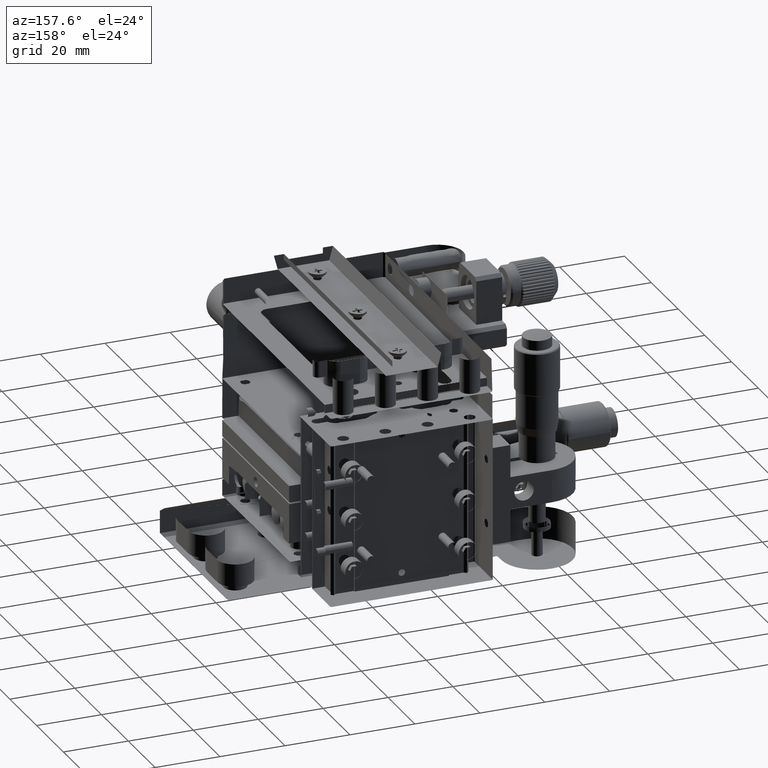
[diagram: clean part render]
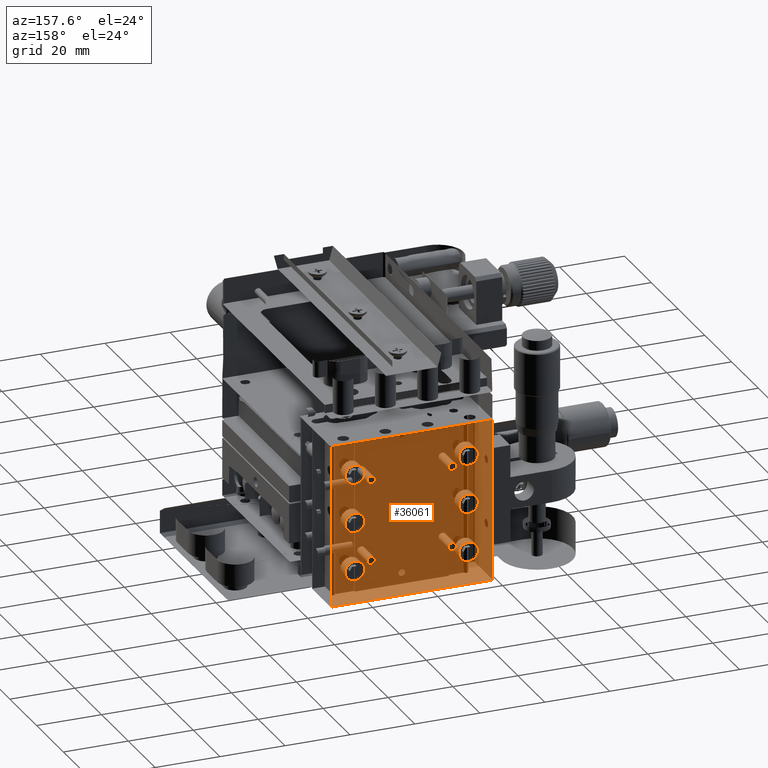
[diagram: same view with one face highlighted and labeled with its STEP entity id]
A machine part, auxiliary view. The second image highlights one B-rep face of the part: STEP entity #36061.
In plain terms, the highlighted face is a freeform B-spline surface patch.
Its self-contained STEP definition (entity closure, byte-faithful):
#28 = CARTESIAN_POINT ( 'NONE',  ( 9.293628209608510105, 58.40884961642790074, 16.00000000000000000 ) ) ;
#59 = CARTESIAN_POINT ( 'NONE',  ( -29.25637179039149771, 58.40884961642790074, 3.500000000000000000 ) ) ;
#657 =( BOUNDED_CURVE ( )  B_SPLINE_CURVE ( 3, ( #30546, #14973, #4615, #34138 ),
 .UNSPECIFIED., .F., .F. ) 
 B_SPLINE_CURVE_WITH_KNOTS ( ( 4, 4 ),
 ( 0.000000000000000000, 1.000000000000000000 ),
 .UNSPECIFIED. ) 
 CURVE ( )  GEOMETRIC_REPRESENTATION_ITEM ( )  RATIONAL_B_SPLINE_CURVE ( ( 1.000000000000000000, 0.3333333333333329818, 0.3333333333333329818, 1.000000000000000000 ) ) 
 REPRESENTATION_ITEM ( '' )  );
#714 = CARTESIAN_POINT ( 'NONE',  ( -29.25637179039149771, 58.40884961642790074, 53.50000000000000000 ) ) ;
#951 = CARTESIAN_POINT ( 'NONE',  ( -15.70637179039149878, 58.40884961642790074, 41.00000000000000000 ) ) ;
#1192 = CARTESIAN_POINT ( 'NONE',  ( -18.95637179039149700, 58.40884961642790074, 13.50000000000000000 ) ) ;
#1448 = CARTESIAN_POINT ( 'NONE',  ( 9.293628209608499446, 58.40884961642790074, 41.00000000000000000 ) ) ;
#1648 = VERTEX_POINT ( 'NONE', #58033 ) ;
#1772 =( BOUNDED_CURVE ( )  B_SPLINE_CURVE ( 3, ( #61805, #56945, #57267, #62754 ),
 .UNSPECIFIED., .F., .T. ) 
 B_SPLINE_CURVE_WITH_KNOTS ( ( 4, 4 ),
 ( 0.000000000000000000, 1.000000000000000000 ),
 .UNSPECIFIED. ) 
 CURVE ( )  GEOMETRIC_REPRESENTATION_ITEM ( )  RATIONAL_B_SPLINE_CURVE ( ( 1.000000000000000000, 0.3333333333333329818, 0.3333333333333329818, 1.000000000000000000 ) ) 
 REPRESENTATION_ITEM ( '' )  );
#1930 = EDGE_CURVE ( 'NONE', #61177, #22872, #1772, .T. ) ;
#2038 = CARTESIAN_POINT ( 'NONE',  ( 9.293628209608495894, 58.40884961642781548, 43.50000000000004263 ) ) ;
#2104 = VERTEX_POINT ( 'NONE', #25995 ) ;
#2110 = B_SPLINE_CURVE_WITH_KNOTS ( 'NONE', 1,
 ( #59, #44898 ),
 .UNSPECIFIED., .F., .F.,
 ( 2, 2 ),
 ( 0.000000000000000000, 1.000000000000000000 ),
 .UNSPECIFIED. ) ;
#2277 = EDGE_LOOP ( 'NONE', ( #36693, #24754 ) ) ;
#2854 = ORIENTED_EDGE ( 'NONE', *, *, #54519, .F. ) ;
#3207 = B_SPLINE_CURVE_WITH_KNOTS ( 'NONE', 1,
 ( #714, #56302 ),
 .UNSPECIFIED., .F., .F.,
 ( 2, 2 ),
 ( 0.000000000000000000, 0.006048594069572639335 ),
 .UNSPECIFIED. ) ;
#3452 = CARTESIAN_POINT ( 'NONE',  ( 10.04362820960849412, 58.40884961642796469, 7.500000000000007994 ) ) ;
#3505 = EDGE_CURVE ( 'NONE', #48611, #64004, #19584, .T. ) ;
#3683 = EDGE_CURVE ( 'NONE', #2104, #19112, #16367, .T. ) ;
#3780 = CARTESIAN_POINT ( 'NONE',  ( 16.04362820960850300, 58.40884961642790074, 13.50000000000000000 ) ) ;
#3881 = VERTEX_POINT ( 'NONE', #63498 ) ;
#3966 = VERTEX_POINT ( 'NONE', #30630 ) ;
#4127 = CARTESIAN_POINT ( 'NONE',  ( -28.95636152454070000, 58.40884961642790074, 53.50000000000000000 ) ) ;
#4162 = FACE_BOUND ( 'NONE', #28538, .T. ) ;
#4254 = CARTESIAN_POINT ( 'NONE',  ( -24.95637179039150055, 58.40884961642790074, 13.50000000000000000 ) ) ;
#4522 = ORIENTED_EDGE ( 'NONE', *, *, #51263, .F. ) ;
#4615 = CARTESIAN_POINT ( 'NONE',  ( 10.04362820960849412, 58.40884961642796469, 49.50000000000004974 ) ) ;
#5306 = ORIENTED_EDGE ( 'NONE', *, *, #11118, .F. ) ;
#5827 =( BOUNDED_CURVE ( )  B_SPLINE_CURVE ( 3, ( #12889, #3452, #22321, #3780 ),
 .UNSPECIFIED., .F., .F. ) 
 B_SPLINE_CURVE_WITH_KNOTS ( ( 4, 4 ),
 ( 0.000000000000000000, 1.000000000000000000 ),
 .UNSPECIFIED. ) 
 CURVE ( )  GEOMETRIC_REPRESENTATION_ITEM ( )  RATIONAL_B_SPLINE_CURVE ( ( 1.000000000000000000, 0.3333333333333329818, 0.3333333333333329818, 1.000000000000000000 ) ) 
 REPRESENTATION_ITEM ( '' )  );
#6533 = CARTESIAN_POINT ( 'NONE',  ( 6.793628209608510993, 58.40884961642790074, 16.00000000000000000 ) ) ;
#6622 = CARTESIAN_POINT ( 'NONE',  ( -18.20637179039149700, 58.40884961642790074, 16.00000000000000000 ) ) ;
#7567 = CARTESIAN_POINT ( 'NONE',  ( 6.793628209608510993, 58.40884961642790074, 41.00000000000000000 ) ) ;
#7601 = EDGE_CURVE ( 'NONE', #23865, #14526, #11450, .T. ) ;
#7616 = CARTESIAN_POINT ( 'NONE',  ( -29.25637179039149771, 58.40884961642790074, 3.500000000000000000 ) ) ;
#8688 = CARTESIAN_POINT ( 'NONE',  ( 10.04362820960849945, 58.40884961642790074, 13.50000000000000000 ) ) ;
#9690 = CARTESIAN_POINT ( 'NONE',  ( -29.25637179039149771, 58.40884961642790074, 53.50000000000000000 ) ) ;
#10737 = VERTEX_POINT ( 'NONE', #24150 ) ;
#10888 = EDGE_CURVE ( 'NONE', #22872, #61177, #48960, .T. ) ;
#11118 = EDGE_CURVE ( 'NONE', #57660, #36487, #26559, .T. ) ;
#11188 = EDGE_CURVE ( 'NONE', #31580, #13422, #33157, .T. ) ;
#11361 = CARTESIAN_POINT ( 'NONE',  ( -15.70637179039150588, 58.40884961642796469, 13.50000000000001776 ) ) ;
#11450 =( BOUNDED_CURVE ( )  B_SPLINE_CURVE ( 3, ( #42481, #37614, #47715, #62642 ),
 .UNSPECIFIED., .F., .T. ) 
 B_SPLINE_CURVE_WITH_KNOTS ( ( 4, 4 ),
 ( 0.000000000000000000, 1.000000000000000000 ),
 .UNSPECIFIED. ) 
 CURVE ( )  GEOMETRIC_REPRESENTATION_ITEM ( )  RATIONAL_B_SPLINE_CURVE ( ( 1.000000000000000000, 0.3333333333333329818, 0.3333333333333329818, 1.000000000000000000 ) ) 
 REPRESENTATION_ITEM ( '' )  );
#11482 = CARTESIAN_POINT ( 'NONE',  ( -15.70637179039149878, 58.40884961642790074, 16.00000000000000000 ) ) ;
#11855 = CARTESIAN_POINT ( 'NONE',  ( 16.04362820960848879, 58.40884961642796469, 22.50000000000002487 ) ) ;
#12200 = CARTESIAN_POINT ( 'NONE',  ( 16.04362820960850300, 58.40884961642790074, 43.50000000000000000 ) ) ;
#12285 = VERTEX_POINT ( 'NONE', #63653 ) ;
#12751 = CARTESIAN_POINT ( 'NONE',  ( 9.293628209608499446, 58.40884961642790074, 41.00000000000000000 ) ) ;
#12889 = CARTESIAN_POINT ( 'NONE',  ( 10.04362820960849945, 58.40884961642790074, 13.50000000000000000 ) ) ;
#13229 = CARTESIAN_POINT ( 'NONE',  ( 20.34362820960850371, 58.40884961642790074, 53.50000000000000000 ) ) ;
#13422 = VERTEX_POINT ( 'NONE', #58663 ) ;
#13624 = EDGE_LOOP ( 'NONE', ( #32468, #5306 ) ) ;
#14179 = EDGE_CURVE ( 'NONE', #30797, #3966, #32925, .T. ) ;
#14526 = VERTEX_POINT ( 'NONE', #4254 ) ;
#14529 = FACE_BOUND ( 'NONE', #19437, .T. ) ;
#14580 = VERTEX_POINT ( 'NONE', #37314 ) ;
#14917 = ORIENTED_EDGE ( 'NONE', *, *, #64064, .F. ) ;
#14973 = CARTESIAN_POINT ( 'NONE',  ( 16.04362820960848879, 58.40884961642796469, 49.50000000000004974 ) ) ;
#15324 = CARTESIAN_POINT ( 'NONE',  ( 10.04362820960849945, 58.40884961642790074, 28.50000000000000000 ) ) ;
#15517 = CARTESIAN_POINT ( 'NONE',  ( -18.95637179039149700, 58.40884961642790074, 43.50000000000000000 ) ) ;
#15776 = ORIENTED_EDGE ( 'NONE', *, *, #61667, .F. ) ;
#16012 = CARTESIAN_POINT ( 'NONE',  ( -15.70637179039150588, 58.40884961642796469, 18.50000000000000355 ) ) ;
#16032 = CARTESIAN_POINT ( 'NONE',  ( -24.95637179039150766, 58.40884961642796469, 34.50000000000003553 ) ) ;
#16246 = CARTESIAN_POINT ( 'NONE',  ( 9.293628209608510105, 58.40884961642790074, 16.00000000000000000 ) ) ;
#16351 =( BOUNDED_CURVE ( )  B_SPLINE_CURVE ( 3, ( #11482, #16012, #51140, #6622 ),
 .UNSPECIFIED., .F., .F. ) 
 B_SPLINE_CURVE_WITH_KNOTS ( ( 4, 4 ),
 ( 0.000000000000000000, 1.000000000000000000 ),
 .UNSPECIFIED. ) 
 CURVE ( )  GEOMETRIC_REPRESENTATION_ITEM ( )  RATIONAL_B_SPLINE_CURVE ( ( 1.000000000000000000, 0.3333333333333329818, 0.3333333333333329818, 1.000000000000000000 ) ) 
 REPRESENTATION_ITEM ( '' )  );
#16362 = CARTESIAN_POINT ( 'NONE',  ( -18.95637179039149700, 58.40884961642790074, 28.50000000000000000 ) ) ;
#16367 =( BOUNDED_CURVE ( )  B_SPLINE_CURVE ( 3, ( #27138, #17707, #37516, #12200 ),
 .UNSPECIFIED., .F., .F. ) 
 B_SPLINE_CURVE_WITH_KNOTS ( ( 4, 4 ),
 ( 0.000000000000000000, 1.000000000000000000 ),
 .UNSPECIFIED. ) 
 CURVE ( )  GEOMETRIC_REPRESENTATION_ITEM ( )  RATIONAL_B_SPLINE_CURVE ( ( 1.000000000000000000, 0.3333333333333329818, 0.3333333333333329818, 1.000000000000000000 ) ) 
 REPRESENTATION_ITEM ( '' )  );
#16762 = CARTESIAN_POINT ( 'NONE',  ( -24.95637179039150055, 58.40884961642790074, 28.50000000000000000 ) ) ;
#17707 = CARTESIAN_POINT ( 'NONE',  ( 10.04362820960849412, 58.40884961642796469, 37.50000000000004263 ) ) ;
#18117 = CARTESIAN_POINT ( 'NONE',  ( 20.34362820960850371, 58.40884961642790074, 53.50000000000000000 ) ) ;
#18720 = CARTESIAN_POINT ( 'NONE',  ( -15.70637179039149878, 58.40884961642790074, 41.00000000000000000 ) ) ;
#18850 = CARTESIAN_POINT ( 'NONE',  ( 20.34362820960850371, 58.40884961642790074, 3.500000000000000000 ) ) ;
#19010 = EDGE_CURVE ( 'NONE', #12285, #34532, #34729, .T. ) ;
#19112 = VERTEX_POINT ( 'NONE', #29473 ) ;
#19437 = EDGE_LOOP ( 'NONE', ( #46174, #20089 ) ) ;
#19584 =( BOUNDED_CURVE ( )  B_SPLINE_CURVE ( 3, ( #62927, #33327, #48653, #8688 ),
 .UNSPECIFIED., .F., .F. ) 
 B_SPLINE_CURVE_WITH_KNOTS ( ( 4, 4 ),
 ( 0.000000000000000000, 1.000000000000000000 ),
 .UNSPECIFIED. ) 
 CURVE ( )  GEOMETRIC_REPRESENTATION_ITEM ( )  RATIONAL_B_SPLINE_CURVE ( ( 1.000000000000000000, 0.3333333333333329818, 0.3333333333333329818, 1.000000000000000000 ) ) 
 REPRESENTATION_ITEM ( '' )  );
#20089 = ORIENTED_EDGE ( 'NONE', *, *, #7601, .F. ) ;
#20161 = CARTESIAN_POINT ( 'NONE',  ( 9.293628209608511881, 58.40884961642781548, 13.50000000000001776 ) ) ;
#20312 = CARTESIAN_POINT ( 'NONE',  ( -18.95637179039149700, 58.40884961642790074, 43.50000000000000000 ) ) ;
#20481 = ORIENTED_EDGE ( 'NONE', *, *, #46672, .F. ) ;
#20655 = VERTEX_POINT ( 'NONE', #16762 ) ;
#20878 = VERTEX_POINT ( 'NONE', #20914 ) ;
#20914 = CARTESIAN_POINT ( 'NONE',  ( 16.04362820960850300, 58.40884961642790074, 28.50000000000000000 ) ) ;
#21953 =( BOUNDED_CURVE ( )  B_SPLINE_CURVE ( 3, ( #47766, #57842, #26972, #46817 ),
 .UNSPECIFIED., .F., .F. ) 
 B_SPLINE_CURVE_WITH_KNOTS ( ( 4, 4 ),
 ( 0.000000000000000000, 1.000000000000000000 ),
 .UNSPECIFIED. ) 
 CURVE ( )  GEOMETRIC_REPRESENTATION_ITEM ( )  RATIONAL_B_SPLINE_CURVE ( ( 1.000000000000000000, 0.3333333333333329818, 0.3333333333333329818, 1.000000000000000000 ) ) 
 REPRESENTATION_ITEM ( '' )  );
#22070 =( BOUNDED_CURVE ( )  B_SPLINE_CURVE ( 3, ( #30221, #26014, #20161, #34783 ),
 .UNSPECIFIED., .F., .F. ) 
 B_SPLINE_CURVE_WITH_KNOTS ( ( 4, 4 ),
 ( 0.000000000000000000, 1.000000000000000000 ),
 .UNSPECIFIED. ) 
 CURVE ( )  GEOMETRIC_REPRESENTATION_ITEM ( )  RATIONAL_B_SPLINE_CURVE ( ( 1.000000000000000000, 0.3333333333333329818, 0.3333333333333329818, 1.000000000000000000 ) ) 
 REPRESENTATION_ITEM ( '' )  );
#22172 = EDGE_LOOP ( 'NONE', ( #49211, #55780 ) ) ;
#22202 = EDGE_CURVE ( 'NONE', #20878, #14580, #31124, .T. ) ;
#22321 = CARTESIAN_POINT ( 'NONE',  ( 16.04362820960848879, 58.40884961642796469, 7.500000000000007994 ) ) ;
#22872 = VERTEX_POINT ( 'NONE', #1448 ) ;
#23203 = ORIENTED_EDGE ( 'NONE', *, *, #1930, .F. ) ;
#23627 = FACE_BOUND ( 'NONE', #35110, .T. ) ;
#23865 = VERTEX_POINT ( 'NONE', #1192 ) ;
#24150 = CARTESIAN_POINT ( 'NONE',  ( 20.04363847545930000, 58.40884961642790074, 53.50000000000000000 ) ) ;
#24436 = CARTESIAN_POINT ( 'NONE',  ( 10.04362820960849945, 58.40884961642790074, 13.50000000000000000 ) ) ;
#24444 = CARTESIAN_POINT ( 'NONE',  ( -24.95637179039150766, 58.40884961642796469, 7.500000000000007994 ) ) ;
#24552 = CARTESIAN_POINT ( 'NONE',  ( -18.20637179039150055, 58.40884961642796469, 43.50000000000004263 ) ) ;
#24754 = ORIENTED_EDGE ( 'NONE', *, *, #49118, .F. ) ;
#25567 = EDGE_LOOP ( 'NONE', ( #55338, #56591 ) ) ;
#25995 = CARTESIAN_POINT ( 'NONE',  ( 10.04362820960849945, 58.40884961642790074, 43.50000000000000000 ) ) ;
#26014 = CARTESIAN_POINT ( 'NONE',  ( 6.793628209608517210, 58.40884961642781548, 13.50000000000001776 ) ) ;
#26153 = EDGE_CURVE ( 'NONE', #3881, #20655, #48251, .T. ) ;
#26559 =( BOUNDED_CURVE ( )  B_SPLINE_CURVE ( 3, ( #16246, #61100, #50723, #6533 ),
 .UNSPECIFIED., .F., .T. ) 
 B_SPLINE_CURVE_WITH_KNOTS ( ( 4, 4 ),
 ( 0.000000000000000000, 1.000000000000000000 ),
 .UNSPECIFIED. ) 
 CURVE ( )  GEOMETRIC_REPRESENTATION_ITEM ( )  RATIONAL_B_SPLINE_CURVE ( ( 1.000000000000000000, 0.3333333333333329818, 0.3333333333333329818, 1.000000000000000000 ) ) 
 REPRESENTATION_ITEM ( '' )  );
#26952 = CARTESIAN_POINT ( 'NONE',  ( 6.793628209608510993, 58.40884961642790074, 41.00000000000000000 ) ) ;
#26972 = CARTESIAN_POINT ( 'NONE',  ( -18.95637179039149700, 58.40884961642796469, 37.50000000000004263 ) ) ;
#27024 = CARTESIAN_POINT ( 'NONE',  ( 20.04363847545930000, 58.40884961642790074, 53.50000000000000000 ) ) ;
#27138 = CARTESIAN_POINT ( 'NONE',  ( 10.04362820960849945, 58.40884961642790074, 43.50000000000000000 ) ) ;
#27902 =( BOUNDED_CURVE ( )  B_SPLINE_CURVE ( 3, ( #52218, #47337, #29715, #44656 ),
 .UNSPECIFIED., .F., .F. ) 
 B_SPLINE_CURVE_WITH_KNOTS ( ( 4, 4 ),
 ( 0.000000000000000000, 1.000000000000000000 ),
 .UNSPECIFIED. ) 
 CURVE ( )  GEOMETRIC_REPRESENTATION_ITEM ( )  RATIONAL_B_SPLINE_CURVE ( ( 1.000000000000000000, 0.3333333333333329818, 0.3333333333333329818, 1.000000000000000000 ) ) 
 REPRESENTATION_ITEM ( '' )  );
#28128 = EDGE_CURVE ( 'NONE', #10737, #45880, #54082, .T. ) ;
#28257 = EDGE_CURVE ( 'NONE', #13422, #31580, #52157, .T. ) ;
#28288 = CARTESIAN_POINT ( 'NONE',  ( 16.04362820960850300, 58.40884961642790074, 28.50000000000000000 ) ) ;
#28367 = CARTESIAN_POINT ( 'NONE',  ( -18.95637179039149700, 58.40884961642796469, 7.500000000000007994 ) ) ;
#28538 = EDGE_LOOP ( 'NONE', ( #2854, #33057 ) ) ;
#29187 = ORIENTED_EDGE ( 'NONE', *, *, #10888, .F. ) ;
#29473 = CARTESIAN_POINT ( 'NONE',  ( 16.04362820960850300, 58.40884961642790074, 43.50000000000000000 ) ) ;
#29715 = CARTESIAN_POINT ( 'NONE',  ( -18.95637179039149700, 58.40884961642796469, 22.50000000000002487 ) ) ;
#29873 = CARTESIAN_POINT ( 'NONE',  ( -18.20637179039149700, 58.40884961642790074, 41.00000000000000000 ) ) ;
#30221 = CARTESIAN_POINT ( 'NONE',  ( 6.793628209608510993, 58.40884961642790074, 16.00000000000000000 ) ) ;
#30546 = CARTESIAN_POINT ( 'NONE',  ( 16.04362820960850300, 58.40884961642790074, 43.50000000000000000 ) ) ;
#30630 = CARTESIAN_POINT ( 'NONE',  ( -29.25637179039149771, 58.40884961642790074, 3.500000000000000000 ) ) ;
#30797 = VERTEX_POINT ( 'NONE', #40229 ) ;
#31124 =( BOUNDED_CURVE ( )  B_SPLINE_CURVE ( 3, ( #39375, #59869, #59235, #15324 ),
 .UNSPECIFIED., .F., .F. ) 
 B_SPLINE_CURVE_WITH_KNOTS ( ( 4, 4 ),
 ( 0.000000000000000000, 1.000000000000000000 ),
 .UNSPECIFIED. ) 
 CURVE ( )  GEOMETRIC_REPRESENTATION_ITEM ( )  RATIONAL_B_SPLINE_CURVE ( ( 1.000000000000000000, 0.3333333333333329818, 0.3333333333333329818, 1.000000000000000000 ) ) 
 REPRESENTATION_ITEM ( '' )  );
#31580 = VERTEX_POINT ( 'NONE', #41974 ) ;
#32088 =( BOUNDED_CURVE ( )  B_SPLINE_CURVE ( 3, ( #56693, #33145, #11855, #28288 ),
 .UNSPECIFIED., .F., .F. ) 
 B_SPLINE_CURVE_WITH_KNOTS ( ( 4, 4 ),
 ( 0.000000000000000000, 1.000000000000000000 ),
 .UNSPECIFIED. ) 
 CURVE ( )  GEOMETRIC_REPRESENTATION_ITEM ( )  RATIONAL_B_SPLINE_CURVE ( ( 1.000000000000000000, 0.3333333333333329818, 0.3333333333333329818, 1.000000000000000000 ) ) 
 REPRESENTATION_ITEM ( '' )  );
#32468 = ORIENTED_EDGE ( 'NONE', *, *, #51982, .F. ) ;
#32914 = CARTESIAN_POINT ( 'NONE',  ( -24.95637179039150055, 58.40884961642790074, 43.50000000000000000 ) ) ;
#32925 = B_SPLINE_CURVE_WITH_KNOTS ( 'NONE', 1,
 ( #36272, #7616 ),
 .UNSPECIFIED., .F., .F.,
 ( 2, 2 ),
 ( 0.000000000000000000, 1.000000000000000000 ),
 .UNSPECIFIED. ) ;
#33041 = CARTESIAN_POINT ( 'NONE',  ( 20.34362820960850371, 58.40884961642790074, 3.500000000000000000 ) ) ;
#33057 = ORIENTED_EDGE ( 'NONE', *, *, #22202, .F. ) ;
#33145 = CARTESIAN_POINT ( 'NONE',  ( 10.04362820960849412, 58.40884961642796469, 22.50000000000002487 ) ) ;
#33157 =( BOUNDED_CURVE ( )  B_SPLINE_CURVE ( 3, ( #18720, #59349, #24552, #63234 ),
 .UNSPECIFIED., .F., .F. ) 
 B_SPLINE_CURVE_WITH_KNOTS ( ( 4, 4 ),
 ( 0.000000000000000000, 1.000000000000000000 ),
 .UNSPECIFIED. ) 
 CURVE ( )  GEOMETRIC_REPRESENTATION_ITEM ( )  RATIONAL_B_SPLINE_CURVE ( ( 1.000000000000000000, 0.3333333333333329818, 0.3333333333333329818, 1.000000000000000000 ) ) 
 REPRESENTATION_ITEM ( '' )  );
#33327 = CARTESIAN_POINT ( 'NONE',  ( 16.04362820960848879, 58.40884961642796469, 19.50000000000002132 ) ) ;
#33349 = B_SPLINE_SURFACE_WITH_KNOTS ( 'NONE', 1, 1, ( 
 ( #9690, #62644 ),
 ( #18117, #33041 ) ),
 .UNSPECIFIED., .F., .F., .F.,
 ( 2, 2 ),
 ( 2, 2 ),
 ( 0.000000000000000000, 1.000000000000000000 ),
 ( 0.000000000000000000, 1.000000000000000000 ),
 .UNSPECIFIED. ) ;
#33650 = ORIENTED_EDGE ( 'NONE', *, *, #28128, .F. ) ;
#34138 = CARTESIAN_POINT ( 'NONE',  ( 10.04362820960849945, 58.40884961642790074, 43.50000000000000000 ) ) ;
#34341 = FACE_BOUND ( 'NONE', #13624, .T. ) ;
#34532 = VERTEX_POINT ( 'NONE', #46009 ) ;
#34689 = CARTESIAN_POINT ( 'NONE',  ( -24.95637179039150055, 58.40884961642790074, 43.50000000000000000 ) ) ;
#34729 =( BOUNDED_CURVE ( )  B_SPLINE_CURVE ( 3, ( #55552, #60430, #11361, #55232 ),
 .UNSPECIFIED., .F., .F. ) 
 B_SPLINE_CURVE_WITH_KNOTS ( ( 4, 4 ),
 ( 0.000000000000000000, 1.000000000000000000 ),
 .UNSPECIFIED. ) 
 CURVE ( )  GEOMETRIC_REPRESENTATION_ITEM ( )  RATIONAL_B_SPLINE_CURVE ( ( 1.000000000000000000, 0.3333333333333329818, 0.3333333333333329818, 1.000000000000000000 ) ) 
 REPRESENTATION_ITEM ( '' )  );
#34783 = CARTESIAN_POINT ( 'NONE',  ( 9.293628209608510105, 58.40884961642790074, 16.00000000000000000 ) ) ;
#34885 =( BOUNDED_CURVE ( )  B_SPLINE_CURVE ( 3, ( #57970, #24444, #28367, #64110 ),
 .UNSPECIFIED., .F., .F. ) 
 B_SPLINE_CURVE_WITH_KNOTS ( ( 4, 4 ),
 ( 0.000000000000000000, 1.000000000000000000 ),
 .UNSPECIFIED. ) 
 CURVE ( )  GEOMETRIC_REPRESENTATION_ITEM ( )  RATIONAL_B_SPLINE_CURVE ( ( 1.000000000000000000, 0.3333333333333329818, 0.3333333333333329818, 1.000000000000000000 ) ) 
 REPRESENTATION_ITEM ( '' )  );
#35110 = EDGE_LOOP ( 'NONE', ( #23203, #29187 ) ) ;
#36061 = ADVANCED_FACE ( 'NONE', ( #38890, #58433, #48680, #38255, #14529, #4162, #23627, #37934, #63602, #34341, #52901 ), #33349, .F. ) ;
#36272 = CARTESIAN_POINT ( 'NONE',  ( 20.34362820960850371, 58.40884961642790074, 3.500000000000000000 ) ) ;
#36487 = VERTEX_POINT ( 'NONE', #63774 ) ;
#36693 = ORIENTED_EDGE ( 'NONE', *, *, #50059, .F. ) ;
#36866 = B_SPLINE_CURVE_WITH_KNOTS ( 'NONE', 1,
 ( #4127, #54152 ),
 .UNSPECIFIED., .F., .F.,
 ( 2, 2 ),
 ( -0.9939518198760239898, -0.006048594069572640203 ),
 .UNSPECIFIED. ) ;
#37314 = CARTESIAN_POINT ( 'NONE',  ( 10.04362820960849945, 58.40884961642790074, 28.50000000000000000 ) ) ;
#37402 = EDGE_CURVE ( 'NONE', #64004, #48611, #5827, .T. ) ;
#37516 = CARTESIAN_POINT ( 'NONE',  ( 16.04362820960848879, 58.40884961642796469, 37.50000000000004263 ) ) ;
#37614 = CARTESIAN_POINT ( 'NONE',  ( -18.95637179039149700, 58.40884961642796469, 19.50000000000002132 ) ) ;
#37674 =( BOUNDED_CURVE ( )  B_SPLINE_CURVE ( 3, ( #15517, #60058, #54223, #34689 ),
 .UNSPECIFIED., .F., .F. ) 
 B_SPLINE_CURVE_WITH_KNOTS ( ( 4, 4 ),
 ( 0.000000000000000000, 1.000000000000000000 ),
 .UNSPECIFIED. ) 
 CURVE ( )  GEOMETRIC_REPRESENTATION_ITEM ( )  RATIONAL_B_SPLINE_CURVE ( ( 1.000000000000000000, 0.3333333333333329818, 0.3333333333333329818, 1.000000000000000000 ) ) 
 REPRESENTATION_ITEM ( '' )  );
#37934 = FACE_BOUND ( 'NONE', #25567, .T. ) ;
#38255 = FACE_BOUND ( 'NONE', #45906, .T. ) ;
#38890 = FACE_BOUND ( 'NONE', #58721, .T. ) ;
#39162 = ORIENTED_EDGE ( 'NONE', *, *, #26153, .F. ) ;
#39306 = CARTESIAN_POINT ( 'NONE',  ( -15.70637179039150588, 58.40884961642796469, 38.50000000000000000 ) ) ;
#39375 = CARTESIAN_POINT ( 'NONE',  ( 16.04362820960850300, 58.40884961642790074, 28.50000000000000000 ) ) ;
#39447 = ORIENTED_EDGE ( 'NONE', *, *, #3683, .F. ) ;
#40229 = CARTESIAN_POINT ( 'NONE',  ( 20.34362820960850371, 58.40884961642790074, 3.500000000000000000 ) ) ;
#40271 = CARTESIAN_POINT ( 'NONE',  ( -18.20637179039150055, 58.40884961642796469, 38.50000000000000000 ) ) ;
#41043 = CARTESIAN_POINT ( 'NONE',  ( -24.95637179039150055, 58.40884961642790074, 28.50000000000000000 ) ) ;
#41974 = CARTESIAN_POINT ( 'NONE',  ( -15.70637179039149878, 58.40884961642790074, 41.00000000000000000 ) ) ;
#42359 = EDGE_LOOP ( 'NONE', ( #15776, #14917, #58798, #60603, #33650, #4522 ) ) ;
#42481 = CARTESIAN_POINT ( 'NONE',  ( -18.95637179039149700, 58.40884961642790074, 13.50000000000000000 ) ) ;
#43290 = EDGE_LOOP ( 'NONE', ( #53507, #46055 ) ) ;
#44656 = CARTESIAN_POINT ( 'NONE',  ( -18.95637179039149700, 58.40884961642790074, 28.50000000000000000 ) ) ;
#44898 = CARTESIAN_POINT ( 'NONE',  ( -29.25637179039149771, 58.40884961642790074, 53.50000000000000000 ) ) ;
#45880 = VERTEX_POINT ( 'NONE', #13229 ) ;
#45906 = EDGE_LOOP ( 'NONE', ( #50707, #39162 ) ) ;
#46009 = CARTESIAN_POINT ( 'NONE',  ( -15.70637179039149878, 58.40884961642790074, 16.00000000000000000 ) ) ;
#46055 = ORIENTED_EDGE ( 'NONE', *, *, #56674, .F. ) ;
#46174 = ORIENTED_EDGE ( 'NONE', *, *, #60631, .F. ) ;
#46672 = EDGE_CURVE ( 'NONE', #19112, #2104, #657, .T. ) ;
#46817 = CARTESIAN_POINT ( 'NONE',  ( -18.95637179039149700, 58.40884961642790074, 43.50000000000000000 ) ) ;
#47337 = CARTESIAN_POINT ( 'NONE',  ( -24.95637179039150766, 58.40884961642796469, 22.50000000000002487 ) ) ;
#47715 = CARTESIAN_POINT ( 'NONE',  ( -24.95637179039150766, 58.40884961642796469, 19.50000000000002132 ) ) ;
#47766 = CARTESIAN_POINT ( 'NONE',  ( -24.95637179039150055, 58.40884961642790074, 43.50000000000000000 ) ) ;
#48251 =( BOUNDED_CURVE ( )  B_SPLINE_CURVE ( 3, ( #16362, #57556, #16032, #41043 ),
 .UNSPECIFIED., .F., .F. ) 
 B_SPLINE_CURVE_WITH_KNOTS ( ( 4, 4 ),
 ( 0.000000000000000000, 1.000000000000000000 ),
 .UNSPECIFIED. ) 
 CURVE ( )  GEOMETRIC_REPRESENTATION_ITEM ( )  RATIONAL_B_SPLINE_CURVE ( ( 1.000000000000000000, 0.3333333333333329818, 0.3333333333333329818, 1.000000000000000000 ) ) 
 REPRESENTATION_ITEM ( '' )  );
#48412 = VERTEX_POINT ( 'NONE', #20312 ) ;
#48611 = VERTEX_POINT ( 'NONE', #56387 ) ;
#48653 = CARTESIAN_POINT ( 'NONE',  ( 10.04362820960849412, 58.40884961642796469, 19.50000000000002132 ) ) ;
#48680 = FACE_BOUND ( 'NONE', #2277, .T. ) ;
#48960 =( BOUNDED_CURVE ( )  B_SPLINE_CURVE ( 3, ( #12751, #2038, #61496, #7567 ),
 .UNSPECIFIED., .F., .F. ) 
 B_SPLINE_CURVE_WITH_KNOTS ( ( 4, 4 ),
 ( 0.000000000000000000, 1.000000000000000000 ),
 .UNSPECIFIED. ) 
 CURVE ( )  GEOMETRIC_REPRESENTATION_ITEM ( )  RATIONAL_B_SPLINE_CURVE ( ( 1.000000000000000000, 0.3333333333333329818, 0.3333333333333329818, 1.000000000000000000 ) ) 
 REPRESENTATION_ITEM ( '' )  );
#49118 = EDGE_CURVE ( 'NONE', #48412, #61534, #37674, .T. ) ;
#49211 = ORIENTED_EDGE ( 'NONE', *, *, #37402, .F. ) ;
#50059 = EDGE_CURVE ( 'NONE', #61534, #48412, #21953, .T. ) ;
#50707 = ORIENTED_EDGE ( 'NONE', *, *, #60093, .F. ) ;
#50723 = CARTESIAN_POINT ( 'NONE',  ( 6.793628209608517210, 58.40884961642781548, 18.50000000000000355 ) ) ;
#51140 = CARTESIAN_POINT ( 'NONE',  ( -18.20637179039150055, 58.40884961642796469, 18.50000000000000355 ) ) ;
#51263 = EDGE_CURVE ( 'NONE', #63298, #10737, #36866, .T. ) ;
#51982 = EDGE_CURVE ( 'NONE', #36487, #57660, #22070, .T. ) ;
#52157 =( BOUNDED_CURVE ( )  B_SPLINE_CURVE ( 3, ( #29873, #40271, #39306, #951 ),
 .UNSPECIFIED., .F., .F. ) 
 B_SPLINE_CURVE_WITH_KNOTS ( ( 4, 4 ),
 ( 0.000000000000000000, 1.000000000000000000 ),
 .UNSPECIFIED. ) 
 CURVE ( )  GEOMETRIC_REPRESENTATION_ITEM ( )  RATIONAL_B_SPLINE_CURVE ( ( 1.000000000000000000, 0.3333333333333329818, 0.3333333333333329818, 1.000000000000000000 ) ) 
 REPRESENTATION_ITEM ( '' )  );
#52218 = CARTESIAN_POINT ( 'NONE',  ( -24.95637179039150055, 58.40884961642790074, 28.50000000000000000 ) ) ;
#52388 = B_SPLINE_CURVE_WITH_KNOTS ( 'NONE', 1,
 ( #18850, #62426 ),
 .UNSPECIFIED., .F., .F.,
 ( 2, 2 ),
 ( 0.000000000000000000, 1.000000000000000000 ),
 .UNSPECIFIED. ) ;
#52901 = FACE_OUTER_BOUND ( 'NONE', #42359, .T. ) ;
#53507 = ORIENTED_EDGE ( 'NONE', *, *, #19010, .F. ) ;
#54082 = B_SPLINE_CURVE_WITH_KNOTS ( 'NONE', 1,
 ( #27024, #61795 ),
 .UNSPECIFIED., .F., .F.,
 ( 2, 2 ),
 ( 0.9939518198760239898, 1.000000000000000000 ),
 .UNSPECIFIED. ) ;
#54152 = CARTESIAN_POINT ( 'NONE',  ( 20.04363847545930000, 58.40884961642790074, 53.50000000000000000 ) ) ;
#54223 = CARTESIAN_POINT ( 'NONE',  ( -24.95637179039150766, 58.40884961642796469, 49.50000000000004974 ) ) ;
#54519 = EDGE_CURVE ( 'NONE', #14580, #20878, #32088, .T. ) ;
#55232 = CARTESIAN_POINT ( 'NONE',  ( -15.70637179039149878, 58.40884961642790074, 16.00000000000000000 ) ) ;
#55338 = ORIENTED_EDGE ( 'NONE', *, *, #28257, .F. ) ;
#55552 = CARTESIAN_POINT ( 'NONE',  ( -18.20637179039149700, 58.40884961642790074, 16.00000000000000000 ) ) ;
#55780 = ORIENTED_EDGE ( 'NONE', *, *, #3505, .F. ) ;
#56302 = CARTESIAN_POINT ( 'NONE',  ( -28.95636152454070000, 58.40884961642790074, 53.50000000000000000 ) ) ;
#56387 = CARTESIAN_POINT ( 'NONE',  ( 16.04362820960850300, 58.40884961642790074, 13.50000000000000000 ) ) ;
#56591 = ORIENTED_EDGE ( 'NONE', *, *, #11188, .F. ) ;
#56674 = EDGE_CURVE ( 'NONE', #34532, #12285, #16351, .T. ) ;
#56693 = CARTESIAN_POINT ( 'NONE',  ( 10.04362820960849945, 58.40884961642790074, 28.50000000000000000 ) ) ;
#56945 = CARTESIAN_POINT ( 'NONE',  ( 6.793628209608517210, 58.40884961642781548, 38.50000000000000000 ) ) ;
#57161 = CARTESIAN_POINT ( 'NONE',  ( -28.95636152454070000, 58.40884961642790074, 53.50000000000000000 ) ) ;
#57267 = CARTESIAN_POINT ( 'NONE',  ( 9.293628209608495894, 58.40884961642781548, 38.50000000000000000 ) ) ;
#57556 = CARTESIAN_POINT ( 'NONE',  ( -18.95637179039149700, 58.40884961642796469, 34.50000000000003553 ) ) ;
#57660 = VERTEX_POINT ( 'NONE', #28 ) ;
#57842 = CARTESIAN_POINT ( 'NONE',  ( -24.95637179039150766, 58.40884961642796469, 37.50000000000004263 ) ) ;
#57970 = CARTESIAN_POINT ( 'NONE',  ( -24.95637179039150055, 58.40884961642790074, 13.50000000000000000 ) ) ;
#58033 = CARTESIAN_POINT ( 'NONE',  ( -29.25637179039149771, 58.40884961642790074, 53.50000000000000000 ) ) ;
#58433 = FACE_BOUND ( 'NONE', #22172, .T. ) ;
#58663 = CARTESIAN_POINT ( 'NONE',  ( -18.20637179039149700, 58.40884961642790074, 41.00000000000000000 ) ) ;
#58721 = EDGE_LOOP ( 'NONE', ( #39447, #20481 ) ) ;
#58798 = ORIENTED_EDGE ( 'NONE', *, *, #14179, .F. ) ;
#59235 = CARTESIAN_POINT ( 'NONE',  ( 10.04362820960849412, 58.40884961642796469, 34.50000000000003553 ) ) ;
#59349 = CARTESIAN_POINT ( 'NONE',  ( -15.70637179039150588, 58.40884961642796469, 43.50000000000004263 ) ) ;
#59869 = CARTESIAN_POINT ( 'NONE',  ( 16.04362820960848879, 58.40884961642796469, 34.50000000000003553 ) ) ;
#60058 = CARTESIAN_POINT ( 'NONE',  ( -18.95637179039149700, 58.40884961642796469, 49.50000000000004974 ) ) ;
#60093 = EDGE_CURVE ( 'NONE', #20655, #3881, #27902, .T. ) ;
#60430 = CARTESIAN_POINT ( 'NONE',  ( -18.20637179039150055, 58.40884961642796469, 13.50000000000001776 ) ) ;
#60603 = ORIENTED_EDGE ( 'NONE', *, *, #64350, .T. ) ;
#60631 = EDGE_CURVE ( 'NONE', #14526, #23865, #34885, .T. ) ;
#61100 = CARTESIAN_POINT ( 'NONE',  ( 9.293628209608511881, 58.40884961642781548, 18.50000000000000355 ) ) ;
#61177 = VERTEX_POINT ( 'NONE', #26952 ) ;
#61496 = CARTESIAN_POINT ( 'NONE',  ( 6.793628209608517210, 58.40884961642781548, 43.50000000000004263 ) ) ;
#61534 = VERTEX_POINT ( 'NONE', #32914 ) ;
#61667 = EDGE_CURVE ( 'NONE', #1648, #63298, #3207, .T. ) ;
#61795 = CARTESIAN_POINT ( 'NONE',  ( 20.34362820960850371, 58.40884961642790074, 53.50000000000000000 ) ) ;
#61805 = CARTESIAN_POINT ( 'NONE',  ( 6.793628209608510993, 58.40884961642790074, 41.00000000000000000 ) ) ;
#62426 = CARTESIAN_POINT ( 'NONE',  ( 20.34362820960850371, 58.40884961642790074, 53.50000000000000000 ) ) ;
#62642 = CARTESIAN_POINT ( 'NONE',  ( -24.95637179039150055, 58.40884961642790074, 13.50000000000000000 ) ) ;
#62644 = CARTESIAN_POINT ( 'NONE',  ( -29.25637179039149771, 58.40884961642790074, 3.500000000000000000 ) ) ;
#62754 = CARTESIAN_POINT ( 'NONE',  ( 9.293628209608499446, 58.40884961642790074, 41.00000000000000000 ) ) ;
#62927 = CARTESIAN_POINT ( 'NONE',  ( 16.04362820960850300, 58.40884961642790074, 13.50000000000000000 ) ) ;
#63234 = CARTESIAN_POINT ( 'NONE',  ( -18.20637179039149700, 58.40884961642790074, 41.00000000000000000 ) ) ;
#63298 = VERTEX_POINT ( 'NONE', #57161 ) ;
#63498 = CARTESIAN_POINT ( 'NONE',  ( -18.95637179039149700, 58.40884961642790074, 28.50000000000000000 ) ) ;
#63602 = FACE_BOUND ( 'NONE', #43290, .T. ) ;
#63653 = CARTESIAN_POINT ( 'NONE',  ( -18.20637179039149700, 58.40884961642790074, 16.00000000000000000 ) ) ;
#63774 = CARTESIAN_POINT ( 'NONE',  ( 6.793628209608510993, 58.40884961642790074, 16.00000000000000000 ) ) ;
#64004 = VERTEX_POINT ( 'NONE', #24436 ) ;
#64064 = EDGE_CURVE ( 'NONE', #3966, #1648, #2110, .T. ) ;
#64110 = CARTESIAN_POINT ( 'NONE',  ( -18.95637179039149700, 58.40884961642790074, 13.50000000000000000 ) ) ;
#64350 = EDGE_CURVE ( 'NONE', #30797, #45880, #52388, .T. ) ;